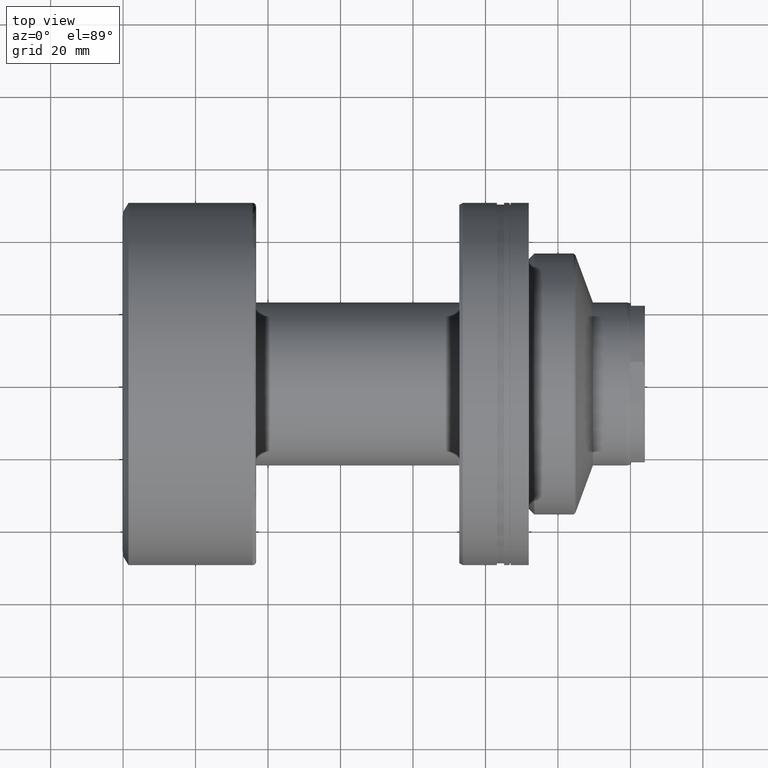
[diagram: clean part render]
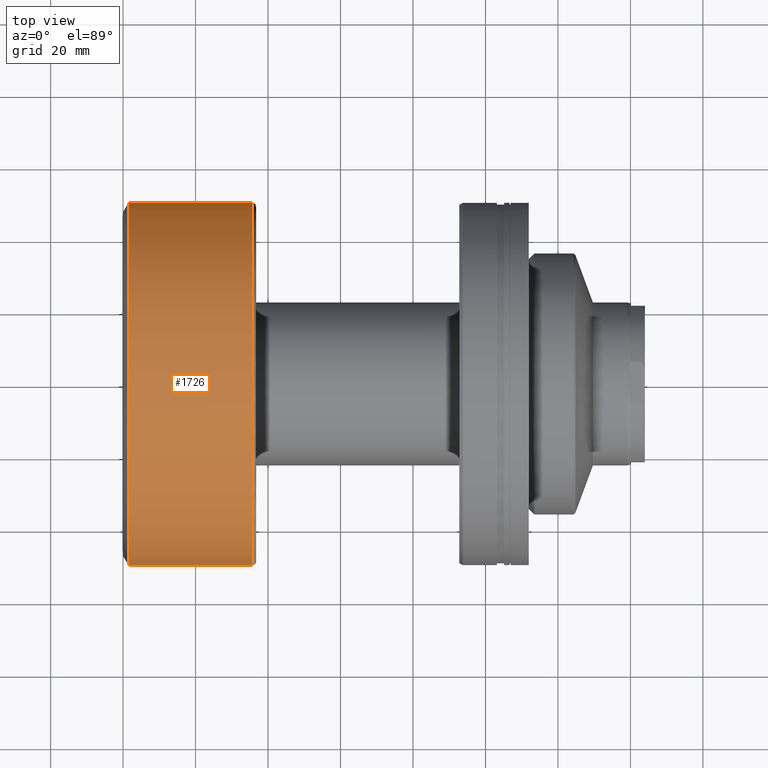
[diagram: same view with one face highlighted and labeled with its STEP entity id]
A machine part, top view. The second image highlights one B-rep face of the part: STEP entity #1726.
In plain terms, the highlighted cylindrical surface (partial cylindrical patch) has radius 50 mm, axis along (-1, -0, -0).
Its self-contained STEP definition (entity closure, byte-faithful):
#96 = ORIENTED_EDGE ( 'NONE', *, *, #1080, .T. ) ;
#112 = CARTESIAN_POINT ( 'NONE',  ( 5.347711610345329959E-16, -50.00000000000000000, 0.000000000000000000 ) ) ;
#132 = DIRECTION ( 'NONE',  ( -1.000000000000000000, -1.069542322069065801E-17, -0.000000000000000000 ) ) ;
#157 = ORIENTED_EDGE ( 'NONE', *, *, #166, .F. ) ;
#166 = EDGE_CURVE ( 'NONE', #1421, #2004, #1270, .T. ) ;
#185 = CARTESIAN_POINT ( 'NONE',  ( 1.500000000000005995, 1.604313483103604941E-17, 0.000000000000000000 ) ) ;
#305 = DIRECTION ( 'NONE',  ( 1.069542322069065955E-17, -1.000000000000000000, 0.000000000000000000 ) ) ;
#308 = CARTESIAN_POINT ( 'NONE',  ( -5.347711610345329959E-16, 50.00000000000000000, 6.123233995736766085E-15 ) ) ;
#326 = VERTEX_POINT ( 'NONE', #2065 ) ;
#383 = CIRCLE ( 'NONE', #1696, 50.00000000000000000 ) ;
#513 = CARTESIAN_POINT ( 'NONE',  ( 1.500000000000006217, -50.00000000000000000, 6.123233995736766085E-15 ) ) ;
#521 = VECTOR ( 'NONE', #2115, 1000.000000000000000 ) ;
#640 = CARTESIAN_POINT ( 'NONE',  ( 35.70000000000000284, 50.00000000000000000, 6.123233995736766085E-15 ) ) ;
#826 = DIRECTION ( 'NONE',  ( -1.000000000000000000, -1.069542322069065801E-17, -0.000000000000000000 ) ) ;
#836 = AXIS2_PLACEMENT_3D ( 'NONE', #185, #1616, #2306 ) ;
#1080 = EDGE_CURVE ( 'NONE', #2217, #2004, #1948, .T. ) ;
#1229 = EDGE_CURVE ( 'NONE', #326, #2217, #383, .T. ) ;
#1270 = CIRCLE ( 'NONE', #836, 50.00000000000000000 ) ;
#1318 = EDGE_CURVE ( 'NONE', #326, #1421, #1425, .T. ) ;
#1366 = FACE_OUTER_BOUND ( 'NONE', #2117, .T. ) ;
#1414 = CARTESIAN_POINT ( 'NONE',  ( 1.500000000000005551, 50.00000000000000000, 0.000000000000000000 ) ) ;
#1421 = VERTEX_POINT ( 'NONE', #513 ) ;
#1425 = LINE ( 'NONE', #112, #521 ) ;
#1528 = AXIS2_PLACEMENT_3D ( 'NONE', #1912, #826, #305 ) ;
#1552 = VECTOR ( 'NONE', #132, 1000.000000000000000 ) ;
#1579 = DIRECTION ( 'NONE',  ( 0.000000000000000000, -1.000000000000000000, 0.000000000000000000 ) ) ;
#1582 = ORIENTED_EDGE ( 'NONE', *, *, #1229, .T. ) ;
#1616 = DIRECTION ( 'NONE',  ( -1.000000000000000000, -1.069542322069065801E-17, -0.000000000000000000 ) ) ;
#1649 = ORIENTED_EDGE ( 'NONE', *, *, #1318, .F. ) ;
#1696 = AXIS2_PLACEMENT_3D ( 'NONE', #1952, #2237, #1579 ) ;
#1726 = ADVANCED_FACE ( 'NONE', ( #1366 ), #1728, .T. ) ;
#1728 = CYLINDRICAL_SURFACE ( 'NONE', #1528, 50.00000000000000000 ) ;
#1912 = CARTESIAN_POINT ( 'NONE',  ( 0.000000000000000000, 0.000000000000000000, 0.000000000000000000 ) ) ;
#1948 = LINE ( 'NONE', #308, #1552 ) ;
#1952 = CARTESIAN_POINT ( 'NONE',  ( 35.70000000000000284, 3.818266089786565135E-16, 0.000000000000000000 ) ) ;
#2004 = VERTEX_POINT ( 'NONE', #1414 ) ;
#2065 = CARTESIAN_POINT ( 'NONE',  ( 35.70000000000000284, -50.00000000000000000, 0.000000000000000000 ) ) ;
#2115 = DIRECTION ( 'NONE',  ( -1.000000000000000000, -1.069542322069065801E-17, -0.000000000000000000 ) ) ;
#2117 = EDGE_LOOP ( 'NONE', ( #1582, #96, #157, #1649 ) ) ;
#2217 = VERTEX_POINT ( 'NONE', #640 ) ;
#2237 = DIRECTION ( 'NONE',  ( -1.000000000000000000, -1.069542322069065801E-17, -0.000000000000000000 ) ) ;
#2306 = DIRECTION ( 'NONE',  ( 8.673617379884035472E-18, -1.000000000000000000, 0.000000000000000000 ) ) ;